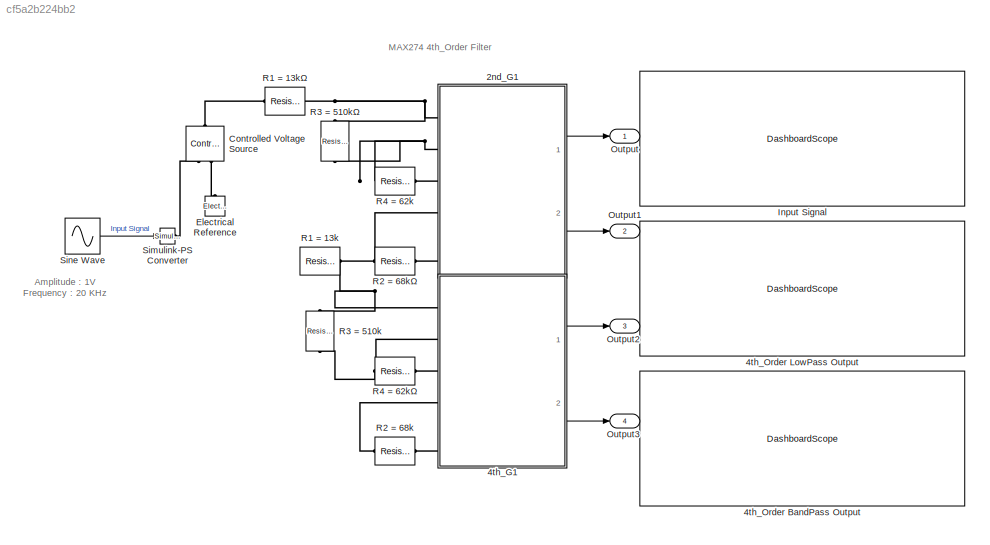
MODEL slx_cf5a2b224bb2
KIND model
CONFIG AbsTol = auto
CONFIG EnableMultiTasking = off
CONFIG FixedStep = auto
CONFIG MaxStep = auto
CONFIG MinStep = auto
CONFIG RelTol = 1e-3
CONFIG SampleTimeConstraint = Unconstrained
CONFIG Solver = VariableStepAuto
CONFIG SolverName = VariableStepAuto
CONFIG StartTime = 0.0
CONFIG StopTime = 0.01
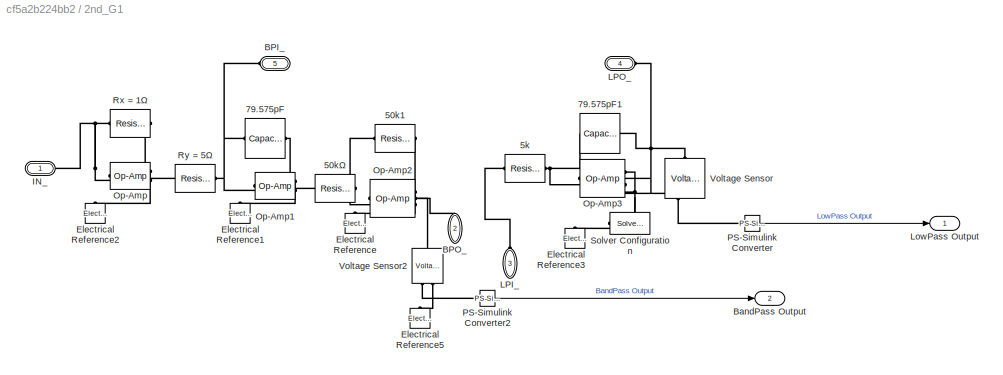
BLOCK [SubSystem] 2nd_G1
  Ports = [0, 2, 0, 0, 0, 5]
  RequestExecContextInheritance = off
BLOCK [Reference] 2nd_G1/50k1  REF=elec_lib/Passive Devices/Resistor
  Ports = [0, 0, 0, 0, 0, 1, 1]
  SourceBlock = elec_lib/Passive Devices/Resistor
  SourceProductBaseCode = SN
  SourceProductName = Simscape Electronics
  SourceType = Resistor
BLOCK [Reference] 2nd_G1/50kΩ  REF=elec_lib/Passive Devices/Resistor
  Ports = [0, 0, 0, 0, 0, 1, 1]
  SourceBlock = elec_lib/Passive Devices/Resistor
  SourceProductBaseCode = SN
  SourceProductName = Simscape Electronics
  SourceType = Resistor
BLOCK [Reference] 2nd_G1/5k  REF=elec_lib/Passive Devices/Resistor
  Ports = [0, 0, 0, 0, 0, 1, 1]
  SourceBlock = elec_lib/Passive Devices/Resistor
  SourceProductBaseCode = SN
  SourceProductName = Simscape Electronics
  SourceType = Resistor
BLOCK [Reference] 2nd_G1/79.575pF  REF=elec_lib/Passive Devices/Capacitor
  Ports = [0, 0, 0, 0, 0, 1, 1]
  SourceBlock = elec_lib/Passive Devices/Capacitor
  SourceProductBaseCode = SN
  SourceProductName = Simscape Electronics
  SourceType = Capacitor
BLOCK [Reference] 2nd_G1/79.575pF1  REF=elec_lib/Passive Devices/Capacitor
  Ports = [0, 0, 0, 0, 0, 1, 1]
  SourceBlock = elec_lib/Passive Devices/Capacitor
  SourceProductBaseCode = SN
  SourceProductName = Simscape Electronics
  SourceType = Capacitor
BLOCK [PMIOPort] 2nd_G1/BPI_
  Port = 5
  Side = Left
BLOCK [PMIOPort] 2nd_G1/BPO_
  Port = 2
  Side = Left
BLOCK [Outport] 2nd_G1/BandPass Output
  IconDisplay = Port number
  Port = 2
BLOCK [Reference] 2nd_G1/Electrical Reference  REF=fl_lib/Electrical/Electrical Elements/Electrical Reference
  Ports = [0, 0, 0, 0, 0, 1]
  SourceBlock = fl_lib/Electrical/Electrical Elements/Electrical Reference
  SourceProductBaseCode = SS
  SourceProductName = Simscape
  SourceType = Electrical Reference
BLOCK [Reference] 2nd_G1/Electrical Reference1  REF=fl_lib/Electrical/Electrical Elements/Electrical Reference
  Ports = [0, 0, 0, 0, 0, 1]
  SourceBlock = fl_lib/Electrical/Electrical Elements/Electrical Reference
  SourceProductBaseCode = SS
  SourceProductName = Simscape
  SourceType = Electrical Reference
BLOCK [Reference] 2nd_G1/Electrical Reference2  REF=fl_lib/Electrical/Electrical Elements/Electrical Reference
  Ports = [0, 0, 0, 0, 0, 1]
  SourceBlock = fl_lib/Electrical/Electrical Elements/Electrical Reference
  SourceProductBaseCode = SS
  SourceProductName = Simscape
  SourceType = Electrical Reference
BLOCK [Reference] 2nd_G1/Electrical Reference3  REF=fl_lib/Electrical/Electrical Elements/Electrical Reference
  Ports = [0, 0, 0, 0, 0, 1]
  SourceBlock = fl_lib/Electrical/Electrical Elements/Electrical Reference
  SourceProductBaseCode = SS
  SourceProductName = Simscape
  SourceType = Electrical Reference
BLOCK [Reference] 2nd_G1/Electrical Reference5  REF=fl_lib/Electrical/Electrical Elements/Electrical Reference
  Ports = [0, 0, 0, 0, 0, 1]
  SourceBlock = fl_lib/Electrical/Electrical Elements/Electrical Reference
  SourceProductBaseCode = SS
  SourceProductName = Simscape
  SourceType = Electrical Reference
BLOCK [PMIOPort] 2nd_G1/IN_
  Side = Left
BLOCK [PMIOPort] 2nd_G1/LPI_
  Port = 3
  Side = Left
BLOCK [PMIOPort] 2nd_G1/LPO_
  Port = 4
  Side = Left
BLOCK [Outport] 2nd_G1/LowPass Output
  IconDisplay = Port number
BLOCK [Reference] 2nd_G1/Op-Amp  REF=fl_lib/Electrical/Electrical Elements/Op-Amp
  Ports = [0, 0, 0, 0, 0, 2, 1]
  SourceBlock = fl_lib/Electrical/Electrical Elements/Op-Amp
  SourceProductBaseCode = SS
  SourceProductName = Simscape
  SourceType = Op-Amp
BLOCK [Reference] 2nd_G1/Op-Amp1  REF=fl_lib/Electrical/Electrical Elements/Op-Amp
  Ports = [0, 0, 0, 0, 0, 2, 1]
  SourceBlock = fl_lib/Electrical/Electrical Elements/Op-Amp
  SourceProductBaseCode = SS
  SourceProductName = Simscape
  SourceType = Op-Amp
BLOCK [Reference] 2nd_G1/Op-Amp2  REF=fl_lib/Electrical/Electrical Elements/Op-Amp
  Ports = [0, 0, 0, 0, 0, 2, 1]
  SourceBlock = fl_lib/Electrical/Electrical Elements/Op-Amp
  SourceProductBaseCode = SS
  SourceProductName = Simscape
  SourceType = Op-Amp
BLOCK [Reference] 2nd_G1/Op-Amp3  REF=fl_lib/Electrical/Electrical Elements/Op-Amp
  Ports = [0, 0, 0, 0, 0, 2, 1]
  SourceBlock = fl_lib/Electrical/Electrical Elements/Op-Amp
  SourceProductBaseCode = SS
  SourceProductName = Simscape
  SourceType = Op-Amp
BLOCK [Reference] 2nd_G1/PS-Simulink Converter  REF=nesl_utility/PS-Simulink
Converter
  Ports = [0, 1, 0, 0, 0, 1]
  SourceBlock = nesl_utility/PS-Simulink\nConverter
  SourceProductBaseCode = SS
  SourceProductName = Simscape
  SourceType = PS-Simulink\nConverter
BLOCK [Reference] 2nd_G1/PS-Simulink Converter2  REF=nesl_utility/PS-Simulink
Converter
  Ports = [0, 1, 0, 0, 0, 1]
  SourceBlock = nesl_utility/PS-Simulink\nConverter
  SourceProductBaseCode = SS
  SourceProductName = Simscape
  SourceType = PS-Simulink\nConverter
BLOCK [Reference] 2nd_G1/Rx = 1Ω  REF=elec_lib/Passive Devices/Resistor
  Ports = [0, 0, 0, 0, 0, 1, 1]
  SourceBlock = elec_lib/Passive Devices/Resistor
  SourceProductBaseCode = SN
  SourceProductName = Simscape Electronics
  SourceType = Resistor
BLOCK [Reference] 2nd_G1/Ry = 5Ω  REF=elec_lib/Passive Devices/Resistor
  Ports = [0, 0, 0, 0, 0, 1, 1]
  SourceBlock = elec_lib/Passive Devices/Resistor
  SourceProductBaseCode = SN
  SourceProductName = Simscape Electronics
  SourceType = Resistor
BLOCK [Reference] 2nd_G1/Solver Configuration  REF=nesl_utility/Solver
Configuration
  Ports = [0, 0, 0, 0, 0, 0, 1]
  SourceBlock = nesl_utility/Solver\nConfiguration
  SourceProductBaseCode = SS
  SourceProductName = Simscape
  SourceType = Solver\nConfiguration
BLOCK [Reference] 2nd_G1/Voltage Sensor  REF=fl_lib/Electrical/Electrical Sensors/Voltage Sensor
  Ports = [0, 0, 0, 0, 0, 1, 2]
  SourceBlock = fl_lib/Electrical/Electrical Sensors/Voltage Sensor
  SourceProductBaseCode = SS
  SourceProductName = Simscape
  SourceType = Voltage Sensor
BLOCK [Reference] 2nd_G1/Voltage Sensor2  REF=fl_lib/Electrical/Electrical Sensors/Voltage Sensor
  Ports = [0, 0, 0, 0, 0, 1, 2]
  SourceBlock = fl_lib/Electrical/Electrical Sensors/Voltage Sensor
  SourceProductBaseCode = SS
  SourceProductName = Simscape
  SourceType = Voltage Sensor
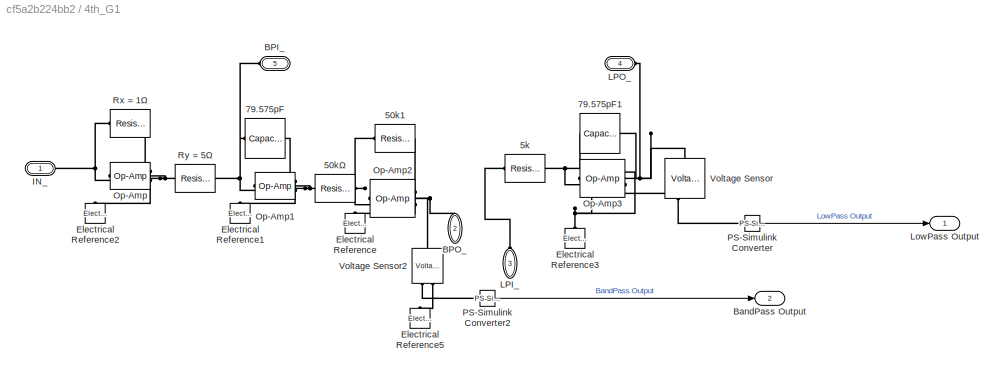
BLOCK [SubSystem] 4th_G1
  Ports = [0, 2, 0, 0, 0, 5]
  RequestExecContextInheritance = off
BLOCK [Reference] 4th_G1/50k1  REF=elec_lib/Passive Devices/Resistor
  Ports = [0, 0, 0, 0, 0, 1, 1]
  SourceBlock = elec_lib/Passive Devices/Resistor
  SourceProductBaseCode = SN
  SourceProductName = Simscape Electronics
  SourceType = Resistor
BLOCK [Reference] 4th_G1/50kΩ  REF=elec_lib/Passive Devices/Resistor
  Ports = [0, 0, 0, 0, 0, 1, 1]
  SourceBlock = elec_lib/Passive Devices/Resistor
  SourceProductBaseCode = SN
  SourceProductName = Simscape Electronics
  SourceType = Resistor
BLOCK [Reference] 4th_G1/5k  REF=elec_lib/Passive Devices/Resistor
  Ports = [0, 0, 0, 0, 0, 1, 1]
  SourceBlock = elec_lib/Passive Devices/Resistor
  SourceProductBaseCode = SN
  SourceProductName = Simscape Electronics
  SourceType = Resistor
BLOCK [Reference] 4th_G1/79.575pF  REF=elec_lib/Passive Devices/Capacitor
  Ports = [0, 0, 0, 0, 0, 1, 1]
  SourceBlock = elec_lib/Passive Devices/Capacitor
  SourceProductBaseCode = SN
  SourceProductName = Simscape Electronics
  SourceType = Capacitor
BLOCK [Reference] 4th_G1/79.575pF1  REF=elec_lib/Passive Devices/Capacitor
  Ports = [0, 0, 0, 0, 0, 1, 1]
  SourceBlock = elec_lib/Passive Devices/Capacitor
  SourceProductBaseCode = SN
  SourceProductName = Simscape Electronics
  SourceType = Capacitor
BLOCK [PMIOPort] 4th_G1/BPI_
  Port = 5
  Side = Left
BLOCK [PMIOPort] 4th_G1/BPO_
  Port = 2
  Side = Left
BLOCK [Outport] 4th_G1/BandPass Output
  IconDisplay = Port number
  Port = 2
BLOCK [Reference] 4th_G1/Electrical Reference  REF=fl_lib/Electrical/Electrical Elements/Electrical Reference
  Ports = [0, 0, 0, 0, 0, 1]
  SourceBlock = fl_lib/Electrical/Electrical Elements/Electrical Reference
  SourceProductBaseCode = SS
  SourceProductName = Simscape
  SourceType = Electrical Reference
BLOCK [Reference] 4th_G1/Electrical Reference1  REF=fl_lib/Electrical/Electrical Elements/Electrical Reference
  Ports = [0, 0, 0, 0, 0, 1]
  SourceBlock = fl_lib/Electrical/Electrical Elements/Electrical Reference
  SourceProductBaseCode = SS
  SourceProductName = Simscape
  SourceType = Electrical Reference
BLOCK [Reference] 4th_G1/Electrical Reference2  REF=fl_lib/Electrical/Electrical Elements/Electrical Reference
  Ports = [0, 0, 0, 0, 0, 1]
  SourceBlock = fl_lib/Electrical/Electrical Elements/Electrical Reference
  SourceProductBaseCode = SS
  SourceProductName = Simscape
  SourceType = Electrical Reference
BLOCK [Reference] 4th_G1/Electrical Reference3  REF=fl_lib/Electrical/Electrical Elements/Electrical Reference
  Ports = [0, 0, 0, 0, 0, 1]
  SourceBlock = fl_lib/Electrical/Electrical Elements/Electrical Reference
  SourceProductBaseCode = SS
  SourceProductName = Simscape
  SourceType = Electrical Reference
BLOCK [Reference] 4th_G1/Electrical Reference5  REF=fl_lib/Electrical/Electrical Elements/Electrical Reference
  Ports = [0, 0, 0, 0, 0, 1]
  SourceBlock = fl_lib/Electrical/Electrical Elements/Electrical Reference
  SourceProductBaseCode = SS
  SourceProductName = Simscape
  SourceType = Electrical Reference
BLOCK [PMIOPort] 4th_G1/IN_
  Side = Left
BLOCK [PMIOPort] 4th_G1/LPI_
  Port = 3
  Side = Left
BLOCK [PMIOPort] 4th_G1/LPO_
  Port = 4
  Side = Left
BLOCK [Outport] 4th_G1/LowPass Output
  IconDisplay = Port number
BLOCK [Reference] 4th_G1/Op-Amp  REF=fl_lib/Electrical/Electrical Elements/Op-Amp
  Ports = [0, 0, 0, 0, 0, 2, 1]
  SourceBlock = fl_lib/Electrical/Electrical Elements/Op-Amp
  SourceProductBaseCode = SS
  SourceProductName = Simscape
  SourceType = Op-Amp
BLOCK [Reference] 4th_G1/Op-Amp1  REF=fl_lib/Electrical/Electrical Elements/Op-Amp
  Ports = [0, 0, 0, 0, 0, 2, 1]
  SourceBlock = fl_lib/Electrical/Electrical Elements/Op-Amp
  SourceProductBaseCode = SS
  SourceProductName = Simscape
  SourceType = Op-Amp
BLOCK [Reference] 4th_G1/Op-Amp2  REF=fl_lib/Electrical/Electrical Elements/Op-Amp
  Ports = [0, 0, 0, 0, 0, 2, 1]
  SourceBlock = fl_lib/Electrical/Electrical Elements/Op-Amp
  SourceProductBaseCode = SS
  SourceProductName = Simscape
  SourceType = Op-Amp
BLOCK [Reference] 4th_G1/Op-Amp3  REF=fl_lib/Electrical/Electrical Elements/Op-Amp
  Ports = [0, 0, 0, 0, 0, 2, 1]
  SourceBlock = fl_lib/Electrical/Electrical Elements/Op-Amp
  SourceProductBaseCode = SS
  SourceProductName = Simscape
  SourceType = Op-Amp
BLOCK [Reference] 4th_G1/PS-Simulink Converter  REF=nesl_utility/PS-Simulink
Converter
  Ports = [0, 1, 0, 0, 0, 1]
  SourceBlock = nesl_utility/PS-Simulink\nConverter
  SourceProductBaseCode = SS
  SourceProductName = Simscape
  SourceType = PS-Simulink\nConverter
BLOCK [Reference] 4th_G1/PS-Simulink Converter2  REF=nesl_utility/PS-Simulink
Converter
  Ports = [0, 1, 0, 0, 0, 1]
  SourceBlock = nesl_utility/PS-Simulink\nConverter
  SourceProductBaseCode = SS
  SourceProductName = Simscape
  SourceType = PS-Simulink\nConverter
BLOCK [Reference] 4th_G1/Rx = 1Ω  REF=elec_lib/Passive Devices/Resistor
  Ports = [0, 0, 0, 0, 0, 1, 1]
  SourceBlock = elec_lib/Passive Devices/Resistor
  SourceProductBaseCode = SN
  SourceProductName = Simscape Electronics
  SourceType = Resistor
BLOCK [Reference] 4th_G1/Ry = 5Ω  REF=elec_lib/Passive Devices/Resistor
  Ports = [0, 0, 0, 0, 0, 1, 1]
  SourceBlock = elec_lib/Passive Devices/Resistor
  SourceProductBaseCode = SN
  SourceProductName = Simscape Electronics
  SourceType = Resistor
BLOCK [Reference] 4th_G1/Voltage Sensor  REF=fl_lib/Electrical/Electrical Sensors/Voltage Sensor
  Ports = [0, 0, 0, 0, 0, 1, 2]
  SourceBlock = fl_lib/Electrical/Electrical Sensors/Voltage Sensor
  SourceProductBaseCode = SS
  SourceProductName = Simscape
  SourceType = Voltage Sensor
BLOCK [Reference] 4th_G1/Voltage Sensor2  REF=fl_lib/Electrical/Electrical Sensors/Voltage Sensor
  Ports = [0, 0, 0, 0, 0, 1, 2]
  SourceBlock = fl_lib/Electrical/Electrical Sensors/Voltage Sensor
  SourceProductBaseCode = SS
  SourceProductName = Simscape
  SourceType = Voltage Sensor
BLOCK [DashboardScope] 4th_Order BandPass Output
  WebBlockId = 318
BLOCK [DashboardScope] 4th_Order LowPass Output
  WebBlockId = 317
BLOCK [Reference] Controlled Voltage Source  REF=fl_lib/Electrical/Electrical Sources/Controlled Voltage
Source
  Ports = [0, 0, 0, 0, 0, 1, 2]
  SourceBlock = fl_lib/Electrical/Electrical Sources/Controlled Voltage\nSource
  SourceProductBaseCode = SS
  SourceProductName = Simscape
  SourceType = Controlled Voltage\nSource
BLOCK [Reference] Electrical Reference  REF=fl_lib/Electrical/Electrical Elements/Electrical Reference
  Ports = [0, 0, 0, 0, 0, 1]
  SourceBlock = fl_lib/Electrical/Electrical Elements/Electrical Reference
  SourceProductBaseCode = SS
  SourceProductName = Simscape
  SourceType = Electrical Reference
BLOCK [DashboardScope] Input Signal
  WebBlockId = 314
BLOCK [Outport] Output
  IconDisplay = Port number
BLOCK [Outport] Output1
  IconDisplay = Port number
  Port = 2
BLOCK [Outport] Output2
  IconDisplay = Port number
  Port = 3
BLOCK [Outport] Output3
  IconDisplay = Port number
  Port = 4
BLOCK [Reference] R1 = 13k  REF=elec_lib/Passive Devices/Resistor
  Ports = [0, 0, 0, 0, 0, 1, 1]
  SourceBlock = elec_lib/Passive Devices/Resistor
  SourceProductBaseCode = SN
  SourceProductName = Simscape Electronics
  SourceType = Resistor
BLOCK [Reference] R1 = 13kΩ  REF=elec_lib/Passive Devices/Resistor
  Ports = [0, 0, 0, 0, 0, 1, 1]
  SourceBlock = elec_lib/Passive Devices/Resistor
  SourceProductBaseCode = SN
  SourceProductName = Simscape Electronics
  SourceType = Resistor
BLOCK [Reference] R2 = 68k  REF=elec_lib/Passive Devices/Resistor
  Ports = [0, 0, 0, 0, 0, 1, 1]
  SourceBlock = elec_lib/Passive Devices/Resistor
  SourceProductBaseCode = SN
  SourceProductName = Simscape Electronics
  SourceType = Resistor
BLOCK [Reference] R2 = 68kΩ  REF=elec_lib/Passive Devices/Resistor
  Ports = [0, 0, 0, 0, 0, 1, 1]
  SourceBlock = elec_lib/Passive Devices/Resistor
  SourceProductBaseCode = SN
  SourceProductName = Simscape Electronics
  SourceType = Resistor
BLOCK [Reference] R3 = 510k  REF=elec_lib/Passive Devices/Resistor
  Ports = [0, 0, 0, 0, 0, 1, 1]
  SourceBlock = elec_lib/Passive Devices/Resistor
  SourceProductBaseCode = SN
  SourceProductName = Simscape Electronics
  SourceType = Resistor
BLOCK [Reference] R3 = 510kΩ  REF=elec_lib/Passive Devices/Resistor
  Ports = [0, 0, 0, 0, 0, 1, 1]
  SourceBlock = elec_lib/Passive Devices/Resistor
  SourceProductBaseCode = SN
  SourceProductName = Simscape Electronics
  SourceType = Resistor
BLOCK [Reference] R4 = 62k  REF=elec_lib/Passive Devices/Resistor
  Ports = [0, 0, 0, 0, 0, 1, 1]
  SourceBlock = elec_lib/Passive Devices/Resistor
  SourceProductBaseCode = SN
  SourceProductName = Simscape Electronics
  SourceType = Resistor
BLOCK [Reference] R4 = 62kΩ  REF=elec_lib/Passive Devices/Resistor
  Ports = [0, 0, 0, 0, 0, 1, 1]
  SourceBlock = elec_lib/Passive Devices/Resistor
  SourceProductBaseCode = SN
  SourceProductName = Simscape Electronics
  SourceType = Resistor
BLOCK [Reference] Simulink-PS Converter  REF=nesl_utility/Simulink-PS
Converter
  Ports = [1, 0, 0, 0, 0, 0, 1]
  SourceBlock = nesl_utility/Simulink-PS\nConverter
  SourceProductBaseCode = SS
  SourceProductName = Simscape
  SourceType = Simulink-PS\nConverter
BLOCK [Sin] Sine Wave 
  Frequency = 2*pi*20e3
  Ports = [0, 1]
  SampleTime = 0
ANNOTATION (root): MAX274 4th_Order Filter
ANNOTATION (root): Amplitude : 1V Frequency : 20 KHz
LINE 2nd_G1/PS-Simulink Converter2:1 -> 2nd_G1/BandPass Output:1
LINE 2nd_G1/PS-Simulink Converter:1 -> 2nd_G1/LowPass Output:1
LINE 2nd_G1:1 -> Output:1
LINE 2nd_G1:2 -> Output1:1
LINE 4th_G1/PS-Simulink Converter2:1 -> 4th_G1/BandPass Output:1
LINE 4th_G1/PS-Simulink Converter:1 -> 4th_G1/LowPass Output:1
LINE 4th_G1:1 -> Output2:1
LINE 4th_G1:2 -> Output3:1
LINE Sine Wave :1 -> Simulink-PS Converter:1
PNET net1: 2nd_G1/50k1:LConn1 -- 2nd_G1/50kΩ:RConn1 -- 2nd_G1/Op-Amp2:LConn2
PNET net2: 2nd_G1/50k1:RConn1 -- 2nd_G1/BPO_:RConn1 -- 2nd_G1/Op-Amp2:RConn1 -- 2nd_G1/Voltage Sensor2:LConn1
PNET net3: 2nd_G1/50kΩ:LConn1 -- 2nd_G1/79.575pF:RConn1 -- 2nd_G1/Op-Amp1:RConn1
PLINE 2nd_G1/5k:LConn1 -- 2nd_G1/LPI_:RConn1
PNET net4: 2nd_G1/5k:RConn1 -- 2nd_G1/79.575pF1:LConn1 -- 2nd_G1/Op-Amp3:LConn2
PNET net5: 2nd_G1/79.575pF1:RConn1 -- 2nd_G1/LPO_:RConn1 -- 2nd_G1/Op-Amp3:RConn1 -- 2nd_G1/Voltage Sensor:LConn1
PNET net6: 2nd_G1/79.575pF:LConn1 -- 2nd_G1/BPI_:RConn1 -- 2nd_G1/Op-Amp1:LConn2 -- 2nd_G1/Ry = 5Ω:RConn1
PLINE 2nd_G1/Electrical Reference1:LConn1 -- 2nd_G1/Op-Amp1:LConn1
PLINE 2nd_G1/Electrical Reference2:LConn1 -- 2nd_G1/Op-Amp:LConn1
PNET net7: 2nd_G1/Electrical Reference3:LConn1 -- 2nd_G1/Op-Amp3:LConn1 -- 2nd_G1/Solver Configuration:RConn1 -- 2nd_G1/Voltage Sensor:RConn2
PLINE 2nd_G1/Electrical Reference5:LConn1 -- 2nd_G1/Voltage Sensor2:RConn2
PLINE 2nd_G1/Electrical Reference:LConn1 -- 2nd_G1/Op-Amp2:LConn1
PNET net8: 2nd_G1/IN_:RConn1 -- 2nd_G1/Op-Amp:LConn2 -- 2nd_G1/Rx = 1Ω:LConn1
PNET net9: 2nd_G1/Op-Amp:RConn1 -- 2nd_G1/Rx = 1Ω:RConn1 -- 2nd_G1/Ry = 5Ω:LConn1
PLINE 2nd_G1/PS-Simulink Converter2:LConn1 -- 2nd_G1/Voltage Sensor2:RConn1
PLINE 2nd_G1/PS-Simulink Converter:LConn1 -- 2nd_G1/Voltage Sensor:RConn1
PNET net10: 2nd_G1:LConn1 -- R1 = 13kΩ:RConn1 -- R3 = 510kΩ:LConn1
PNET net11: 2nd_G1:LConn2 -- R3 = 510kΩ:RConn1 -- R4 = 62k:LConn1
PLINE 2nd_G1:LConn3 -- R4 = 62k:RConn1
PNET net12: 2nd_G1:LConn4 -- R1 = 13k:LConn1 -- R2 = 68kΩ:LConn1
PLINE 2nd_G1:LConn5 -- R2 = 68kΩ:RConn1
PNET net13: 4th_G1/50k1:LConn1 -- 4th_G1/50kΩ:RConn1 -- 4th_G1/Op-Amp2:LConn2
PNET net14: 4th_G1/50k1:RConn1 -- 4th_G1/BPO_:RConn1 -- 4th_G1/Op-Amp2:RConn1 -- 4th_G1/Voltage Sensor2:LConn1
PNET net15: 4th_G1/50kΩ:LConn1 -- 4th_G1/79.575pF:RConn1 -- 4th_G1/Op-Amp1:RConn1
PLINE 4th_G1/5k:LConn1 -- 4th_G1/LPI_:RConn1
PNET net16: 4th_G1/5k:RConn1 -- 4th_G1/79.575pF1:LConn1 -- 4th_G1/Op-Amp3:LConn2
PNET net17: 4th_G1/79.575pF1:RConn1 -- 4th_G1/LPO_:RConn1 -- 4th_G1/Op-Amp3:RConn1 -- 4th_G1/Voltage Sensor:LConn1
PNET net18: 4th_G1/79.575pF:LConn1 -- 4th_G1/BPI_:RConn1 -- 4th_G1/Op-Amp1:LConn2 -- 4th_G1/Ry = 5Ω:RConn1
PLINE 4th_G1/Electrical Reference1:LConn1 -- 4th_G1/Op-Amp1:LConn1
PLINE 4th_G1/Electrical Reference2:LConn1 -- 4th_G1/Op-Amp:LConn1
PNET net19: 4th_G1/Electrical Reference3:LConn1 -- 4th_G1/Op-Amp3:LConn1 -- 4th_G1/Voltage Sensor:RConn2
PLINE 4th_G1/Electrical Reference5:LConn1 -- 4th_G1/Voltage Sensor2:RConn2
PLINE 4th_G1/Electrical Reference:LConn1 -- 4th_G1/Op-Amp2:LConn1
PNET net20: 4th_G1/IN_:RConn1 -- 4th_G1/Op-Amp:LConn2 -- 4th_G1/Rx = 1Ω:LConn1
PNET net21: 4th_G1/Op-Amp:RConn1 -- 4th_G1/Rx = 1Ω:RConn1 -- 4th_G1/Ry = 5Ω:LConn1
PLINE 4th_G1/PS-Simulink Converter2:LConn1 -- 4th_G1/Voltage Sensor2:RConn1
PLINE 4th_G1/PS-Simulink Converter:LConn1 -- 4th_G1/Voltage Sensor:RConn1
PNET net22: 4th_G1:LConn1 -- R1 = 13k:RConn1 -- R3 = 510k:LConn1
PNET net23: 4th_G1:LConn2 -- R3 = 510k:RConn1 -- R4 = 62kΩ:LConn1
PLINE 4th_G1:LConn3 -- R4 = 62kΩ:RConn1
PLINE 4th_G1:LConn4 -- R2 = 68k:LConn1
PLINE 4th_G1:LConn5 -- R2 = 68k:RConn1
PLINE Controlled Voltage Source:LConn1 -- R1 = 13kΩ:LConn1
PLINE Controlled Voltage Source:RConn1 -- Simulink-PS Converter:RConn1
PLINE Controlled Voltage Source:RConn2 -- Electrical Reference:LConn1
note: PNET lines group multi-terminal physical nets as a canonical sorted terminal list (undirected conserving connections); 2-terminal nets keep the pairwise PLINE form
